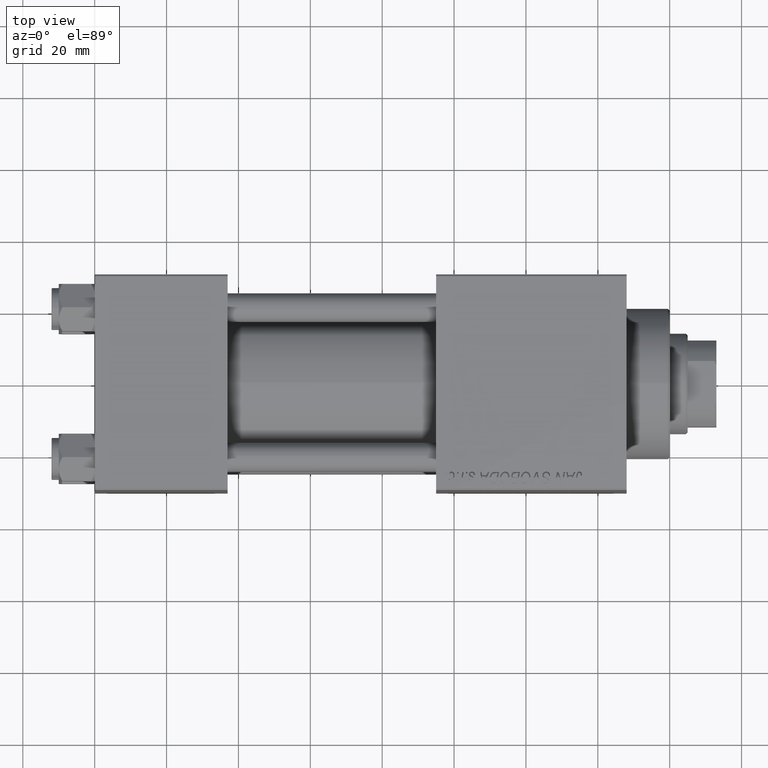
[diagram: clean part render]
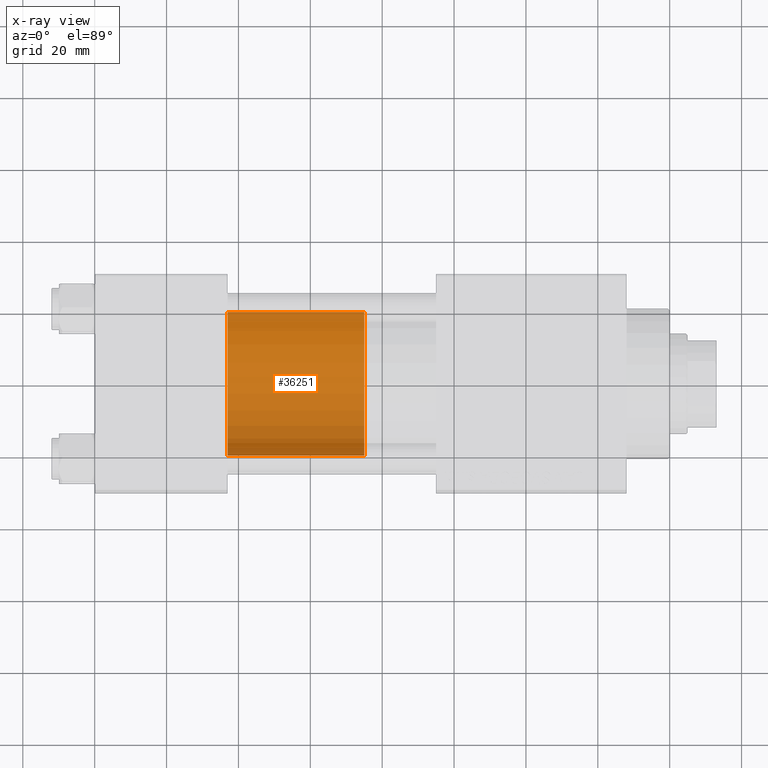
[diagram: x-ray — body ghosted, one internal face saturated and labeled with its STEP entity id]
A machine part, top view, then the same camera in x-ray: the body is ghosted and one INTERNAL B-rep face — a face not visible from any outside direction — is saturated and labeled: STEP entity #36251.
In plain terms, the highlighted cylindrical surface (partial cylindrical patch) has radius 20 mm, axis along (-1, 0, 0).
Its self-contained STEP definition (entity closure, byte-faithful):
#1901 = AXIS2_PLACEMENT_3D ( 'NONE', #47126, #43320, #33422 ) ;
#3559 = AXIS2_PLACEMENT_3D ( 'NONE', #43827, #36478, #44096 ) ;
#4466 = CARTESIAN_POINT ( 'NONE',  ( 0.000000000000000000, 0.000000000000000000, 0.000000000000000000 ) ) ;
#5351 = ORIENTED_EDGE ( 'NONE', *, *, #11972, .F. ) ;
#8184 = VERTEX_POINT ( 'NONE', #15158 ) ;
#8444 = EDGE_LOOP ( 'NONE', ( #5351, #30921, #14143, #30536 ) ) ;
#10152 = EDGE_CURVE ( 'NONE', #20848, #13041, #30348, .T. ) ;
#11972 = EDGE_CURVE ( 'NONE', #22814, #8184, #46460, .T. ) ;
#13041 = VERTEX_POINT ( 'NONE', #39447 ) ;
#13999 = EDGE_CURVE ( 'NONE', #22814, #20848, #48432, .T. ) ;
#14143 = ORIENTED_EDGE ( 'NONE', *, *, #10152, .T. ) ;
#14840 = AXIS2_PLACEMENT_3D ( 'NONE', #4466, #22762, #38241 ) ;
#15158 = CARTESIAN_POINT ( 'NONE',  ( -20.00000000000000000, 0.000000000000000000, 38.00000000000000000 ) ) ;
#16747 = LINE ( 'NONE', #32241, #43773 ) ;
#20848 = VERTEX_POINT ( 'NONE', #30915 ) ;
#21622 = EDGE_CURVE ( 'NONE', #8184, #13041, #16747, .T. ) ;
#22762 = DIRECTION ( 'NONE',  ( 0.000000000000000000, 0.000000000000000000, 1.000000000000000000 ) ) ;
#22814 = VERTEX_POINT ( 'NONE', #42392 ) ;
#24293 = CYLINDRICAL_SURFACE ( 'NONE', #3559, 20.00000000000000000 ) ;
#30348 = CIRCLE ( 'NONE', #14840, 20.00000000000000000 ) ;
#30536 = ORIENTED_EDGE ( 'NONE', *, *, #21622, .F. ) ;
#30915 = CARTESIAN_POINT ( 'NONE',  ( 20.00000000000000000, 2.449293598294706513E-15, 0.000000000000000000 ) ) ;
#30921 = ORIENTED_EDGE ( 'NONE', *, *, #13999, .T. ) ;
#32241 = CARTESIAN_POINT ( 'NONE',  ( -20.00000000000000000, 0.000000000000000000, 38.00000000000000000 ) ) ;
#32695 = DIRECTION ( 'NONE',  ( -0.000000000000000000, -0.000000000000000000, -1.000000000000000000 ) ) ;
#32945 = FACE_OUTER_BOUND ( 'NONE', #8444, .T. ) ;
#33422 = DIRECTION ( 'NONE',  ( 1.000000000000000000, 0.000000000000000000, 0.000000000000000000 ) ) ;
#36251 = ADVANCED_FACE ( 'NONE', ( #32945 ), #24293, .T. ) ;
#36478 = DIRECTION ( 'NONE',  ( -0.000000000000000000, -0.000000000000000000, -1.000000000000000000 ) ) ;
#36547 = DIRECTION ( 'NONE',  ( -0.000000000000000000, -0.000000000000000000, -1.000000000000000000 ) ) ;
#38241 = DIRECTION ( 'NONE',  ( 1.000000000000000000, 0.000000000000000000, 0.000000000000000000 ) ) ;
#39447 = CARTESIAN_POINT ( 'NONE',  ( -20.00000000000000000, 0.000000000000000000, 0.000000000000000000 ) ) ;
#42392 = CARTESIAN_POINT ( 'NONE',  ( 20.00000000000000000, 2.449293598294706513E-15, 38.00000000000000000 ) ) ;
#43320 = DIRECTION ( 'NONE',  ( 0.000000000000000000, 0.000000000000000000, 1.000000000000000000 ) ) ;
#43773 = VECTOR ( 'NONE', #36547, 1000.000000000000000 ) ;
#43827 = CARTESIAN_POINT ( 'NONE',  ( 0.000000000000000000, 0.000000000000000000, 38.00000000000000000 ) ) ;
#44096 = DIRECTION ( 'NONE',  ( -1.000000000000000000, 0.000000000000000000, 0.000000000000000000 ) ) ;
#44612 = CARTESIAN_POINT ( 'NONE',  ( 20.00000000000000000, 2.449293598294706513E-15, 38.00000000000000000 ) ) ;
#46460 = CIRCLE ( 'NONE', #1901, 20.00000000000000000 ) ;
#47126 = CARTESIAN_POINT ( 'NONE',  ( 0.000000000000000000, 0.000000000000000000, 38.00000000000000000 ) ) ;
#48181 = VECTOR ( 'NONE', #32695, 1000.000000000000000 ) ;
#48432 = LINE ( 'NONE', #44612, #48181 ) ;